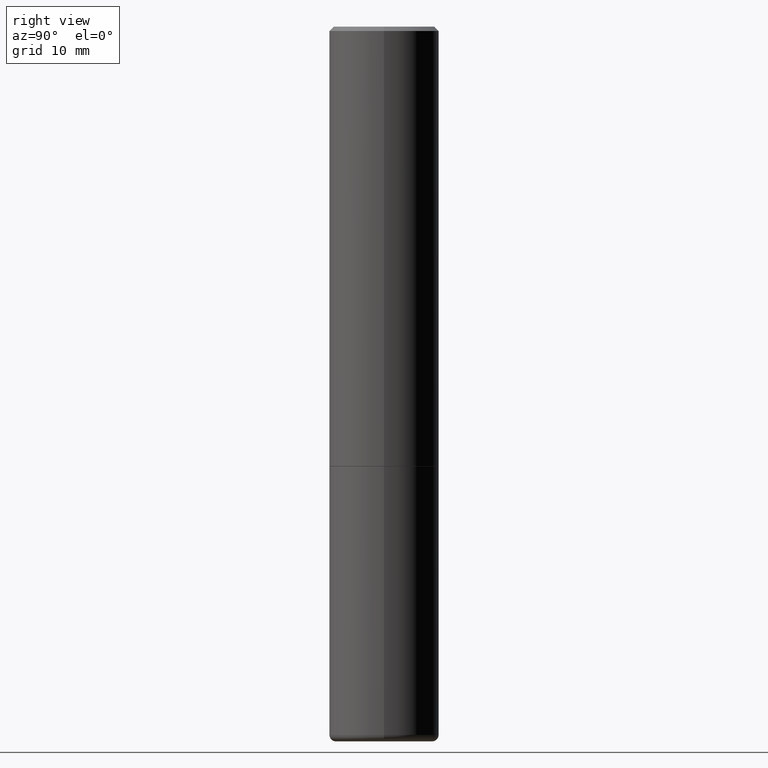
[diagram: clean part render]
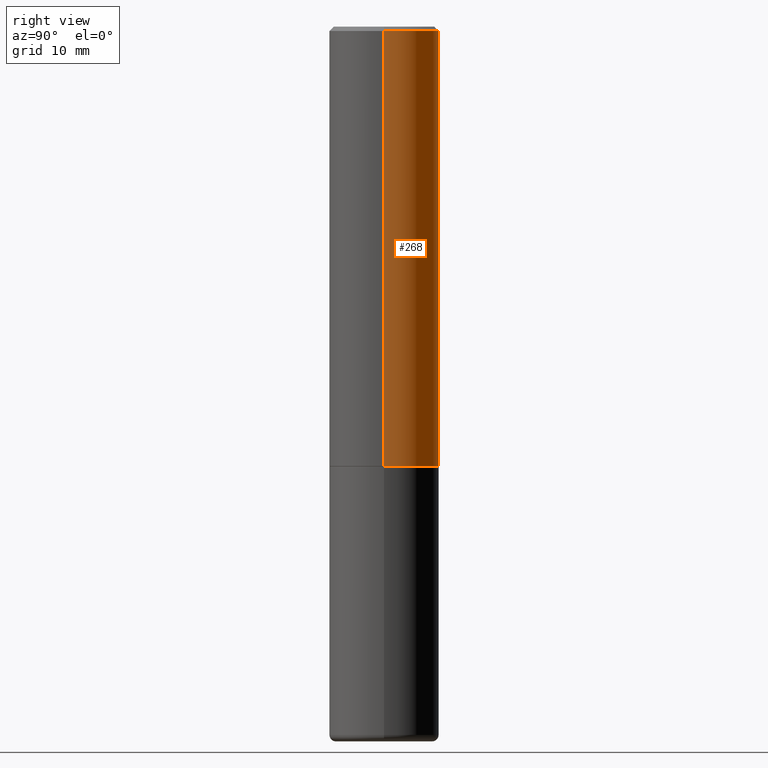
[diagram: same view with one face highlighted and labeled with its STEP entity id]
A machine part, right view. The second image highlights one B-rep face of the part: STEP entity #268.
In plain terms, the highlighted cylindrical surface (partial cylindrical patch) has radius 6.35 mm, axis along (-0, 0, 1).
Its self-contained STEP definition (entity closure, byte-faithful):
#67 = CIRCLE ( 'NONE', #157, 0.2499999999999994171 ) ;
#72 = ORIENTED_EDGE ( 'NONE', *, *, #455, .T. ) ;
#73 = CYLINDRICAL_SURFACE ( 'NONE', #91, 0.2499999999999995282 ) ;
#78 = ORIENTED_EDGE ( 'NONE', *, *, #295, .F. ) ;
#91 = AXIS2_PLACEMENT_3D ( 'NONE', #224, #411, #379 ) ;
#111 = CARTESIAN_POINT ( 'NONE',  ( 4.890937612370304688E-31, -6.982962677686337215E-17, -0.02000000000000013226 ) ) ;
#113 = DIRECTION ( 'NONE',  ( 1.000000000000000000, -6.982962677686264344E-15, 0.000000000000000000 ) ) ;
#157 = AXIS2_PLACEMENT_3D ( 'NONE', #111, #226, #293 ) ;
#158 = VECTOR ( 'NONE', #420, 39.37007874015748143 ) ;
#186 = CIRCLE ( 'NONE', #292, 0.2499999999999996669 ) ;
#190 = LINE ( 'NONE', #232, #158 ) ;
#217 = LINE ( 'NONE', #222, #218 ) ;
#218 = VECTOR ( 'NONE', #338, 39.37007874015748143 ) ;
#222 = CARTESIAN_POINT ( 'NONE',  ( 0.2499999999999995282, -1.745740669421563325E-15, 1.219044193948981566E-29 ) ) ;
#224 = CARTESIAN_POINT ( 'NONE',  ( 0.000000000000000000, 0.000000000000000000, 0.000000000000000000 ) ) ;
#225 = VERTEX_POINT ( 'NONE', #283 ) ;
#226 = DIRECTION ( 'NONE',  ( -2.445468806185136597E-29, 3.491481338843145583E-15, 1.000000000000000000 ) ) ;
#232 = CARTESIAN_POINT ( 'NONE',  ( -0.2499999999999995282, 1.776356839400247112E-15, -1.229733772563724063E-29 ) ) ;
#267 = ORIENTED_EDGE ( 'NONE', *, *, #372, .T. ) ;
#268 = ADVANCED_FACE ( 'NONE', ( #453 ), #73, .T. ) ;
#283 = CARTESIAN_POINT ( 'NONE',  ( -0.2499999999999994171, 1.675911042644699238E-15, -0.02000000000000013226 ) ) ;
#292 = AXIS2_PLACEMENT_3D ( 'NONE', #484, #377, #113 ) ;
#293 = DIRECTION ( 'NONE',  ( 1.000000000000000000, -6.982962677686266711E-15, 0.000000000000000000 ) ) ;
#295 = EDGE_CURVE ( 'NONE', #388, #225, #67, .T. ) ;
#297 = CARTESIAN_POINT ( 'NONE',  ( 0.2499999999999994171, -1.784954126219742244E-15, -0.02000000000000013226 ) ) ;
#299 = CARTESIAN_POINT ( 'NONE',  ( -0.2499999999999996114, -1.748293572161906447E-15, -1.998999999999999888 ) ) ;
#326 = EDGE_CURVE ( 'NONE', #465, #388, #217, .T. ) ;
#338 = DIRECTION ( 'NONE',  ( -2.445468806185136877E-29, 3.491481338843145188E-15, 1.000000000000000000 ) ) ;
#343 = VERTEX_POINT ( 'NONE', #299 ) ;
#359 = EDGE_LOOP ( 'NONE', ( #267, #72, #78, #452 ) ) ;
#372 = EDGE_CURVE ( 'NONE', #465, #343, #186, .T. ) ;
#377 = DIRECTION ( 'NONE',  ( -2.445468806185136597E-29, 3.491481338843145583E-15, 1.000000000000000000 ) ) ;
#379 = DIRECTION ( 'NONE',  ( 1.000000000000000000, -6.982962677686266711E-15, 4.876176775795935232E-29 ) ) ;
#388 = VERTEX_POINT ( 'NONE', #297 ) ;
#390 = CARTESIAN_POINT ( 'NONE',  ( 0.2499999999999996669, -8.725211865769010891E-15, -1.998999999999999888 ) ) ;
#411 = DIRECTION ( 'NONE',  ( -2.445468806185136597E-29, 3.491481338843145583E-15, 1.000000000000000000 ) ) ;
#420 = DIRECTION ( 'NONE',  ( -2.445468806185136877E-29, 3.491481338843145188E-15, 1.000000000000000000 ) ) ;
#452 = ORIENTED_EDGE ( 'NONE', *, *, #326, .F. ) ;
#453 = FACE_OUTER_BOUND ( 'NONE', #359, .T. ) ;
#455 = EDGE_CURVE ( 'NONE', #343, #225, #190, .T. ) ;
#465 = VERTEX_POINT ( 'NONE', #390 ) ;
#484 = CARTESIAN_POINT ( 'NONE',  ( 4.888492143564087591E-29, -6.979471196347447369E-15, -1.998999999999999888 ) ) ;